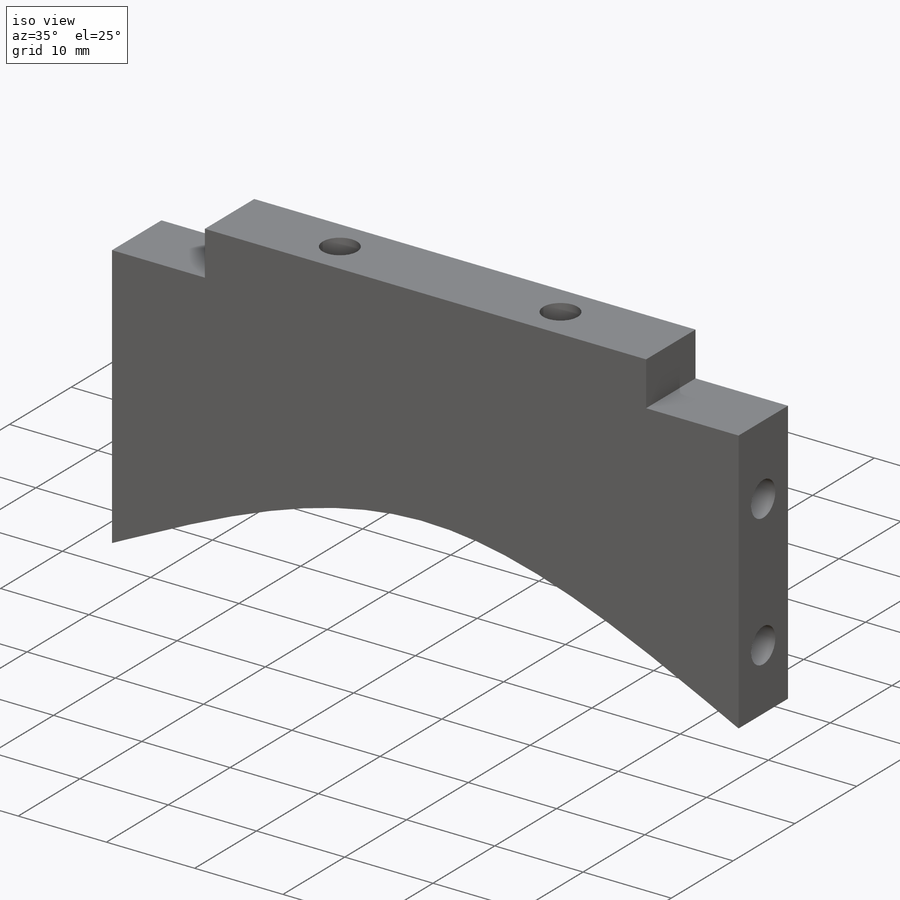
[diagram: iso view]
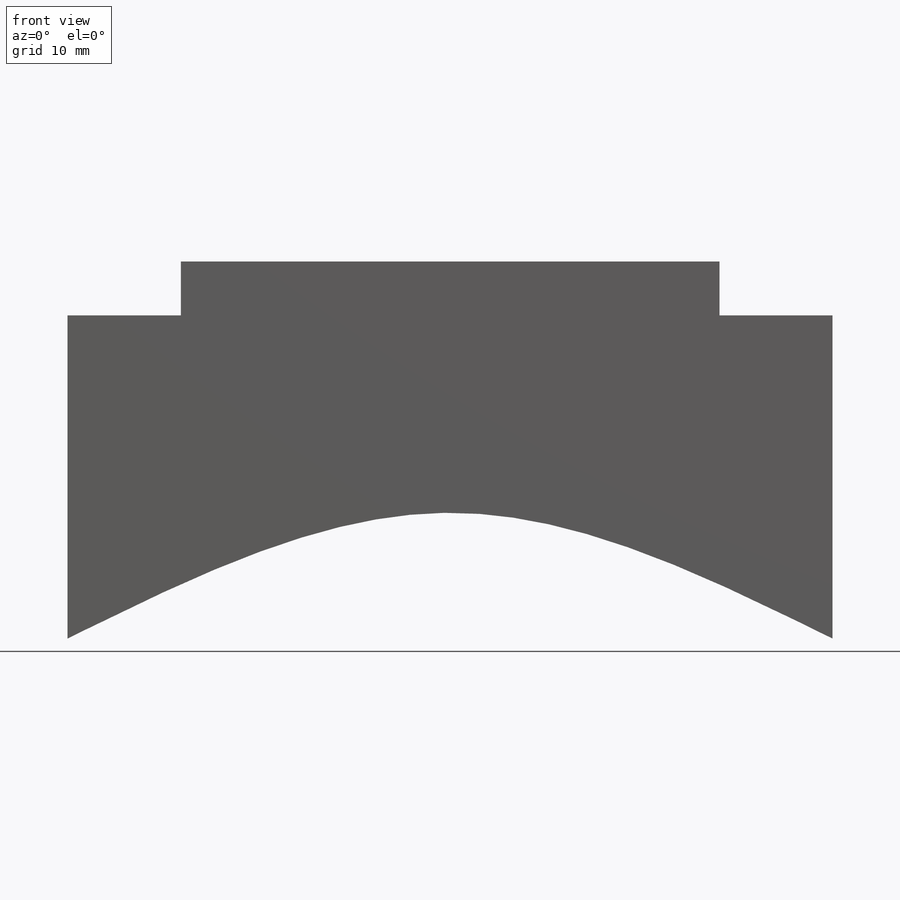
[diagram: front view]
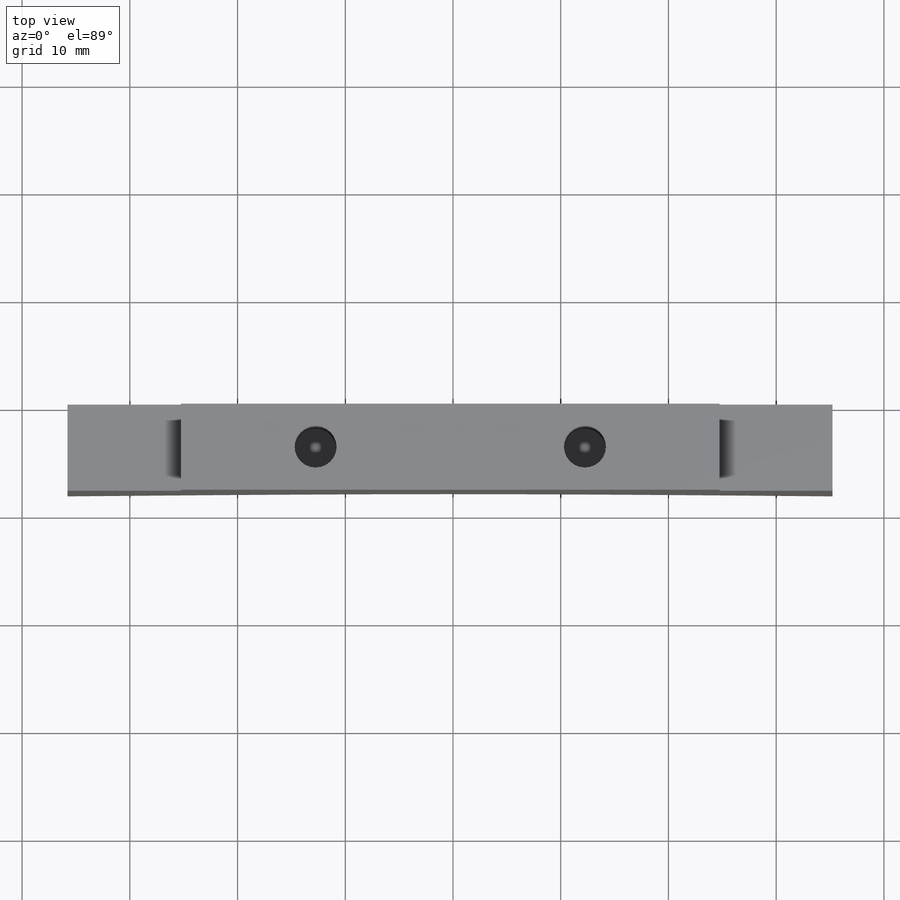
[diagram: top view]
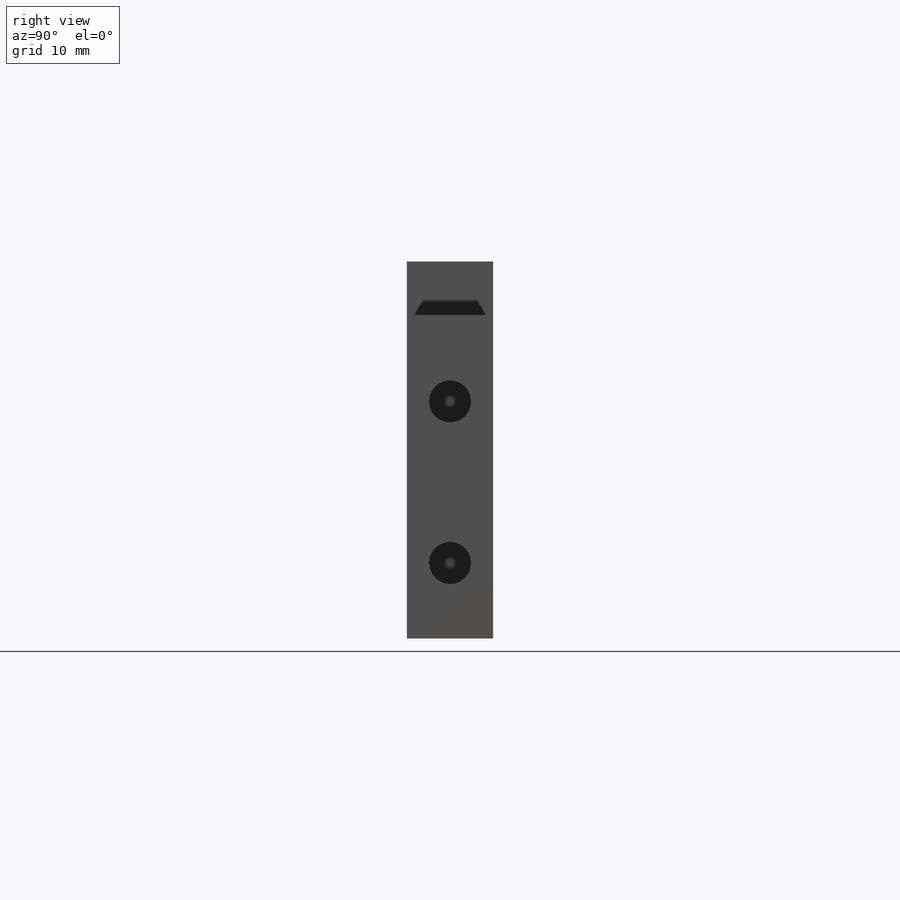
[diagram: right view]
SOLIDWORKS PART (.sldprt)
format: sldprt  version: not decoded by parser v0  size: 147,968 bytes
history: native  units: mm
features: sketch x5, cut_extrude x4, material x1, extrude x1 (+14 scaffold rows collapsed)
feature tree (25):
  scaffold x14  (default folders/planes/origin — collapsed)
  material  "Material <not specified>"
  sketch  "Sketch1"  dims[D1=71.0mm D2=30.0mm D3=5.0mm D4=50.0mm]
  extrude  "Extrude1"  Depth=8mm
  sketch  "Sketch2"
  cut_extrude  "Extrude2"  Depth=8mm
  sketch  "Sketch3"  dims[D1=3.9mm D2=25.0mm D3=12.5mm D4=12.5mm]
  cut_extrude  "Extrude3"  Depth=15mm
  sketch  "Sketch4"  dims[D1=3.9mm D2=15.0mm D3=8.0mm]
  cut_extrude  "Extrude4"  Depth=10mm
  sketch  "Sketch5"
  cut_extrude  "Extrude5"  Depth=10mm
decode coverage: 8 of 10 modeling features carry decoded parameters
note: suppression state not decoded; provenance and decode notes live in map.json
